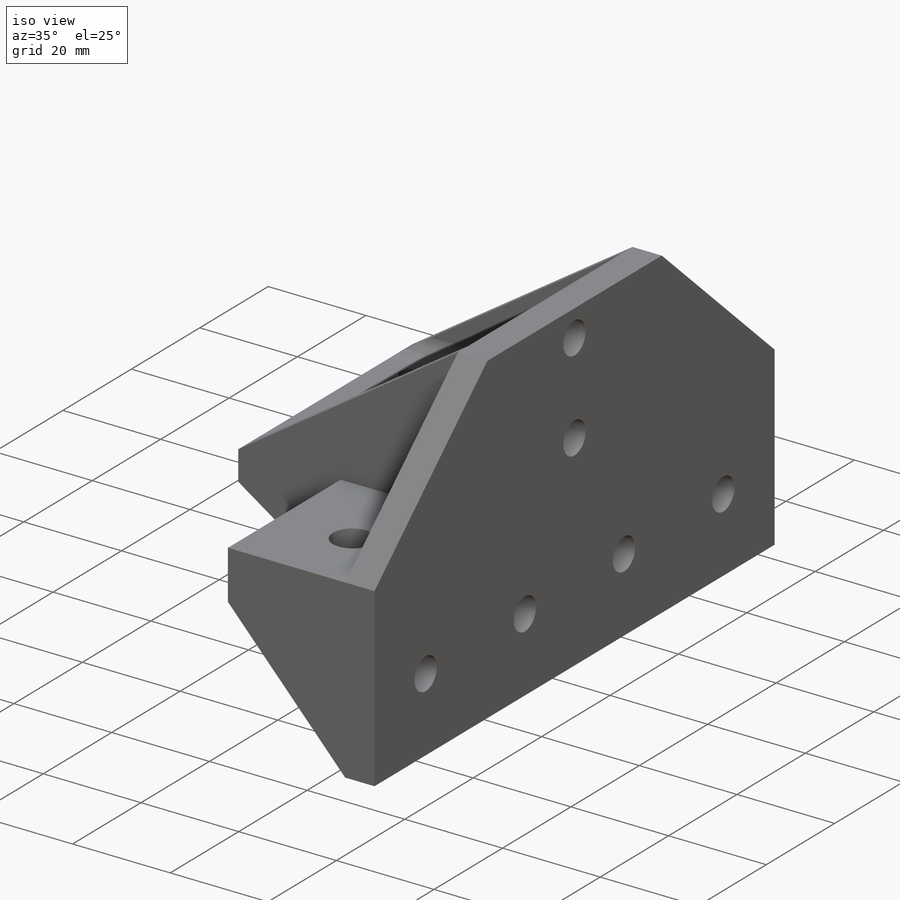
[diagram: iso view]
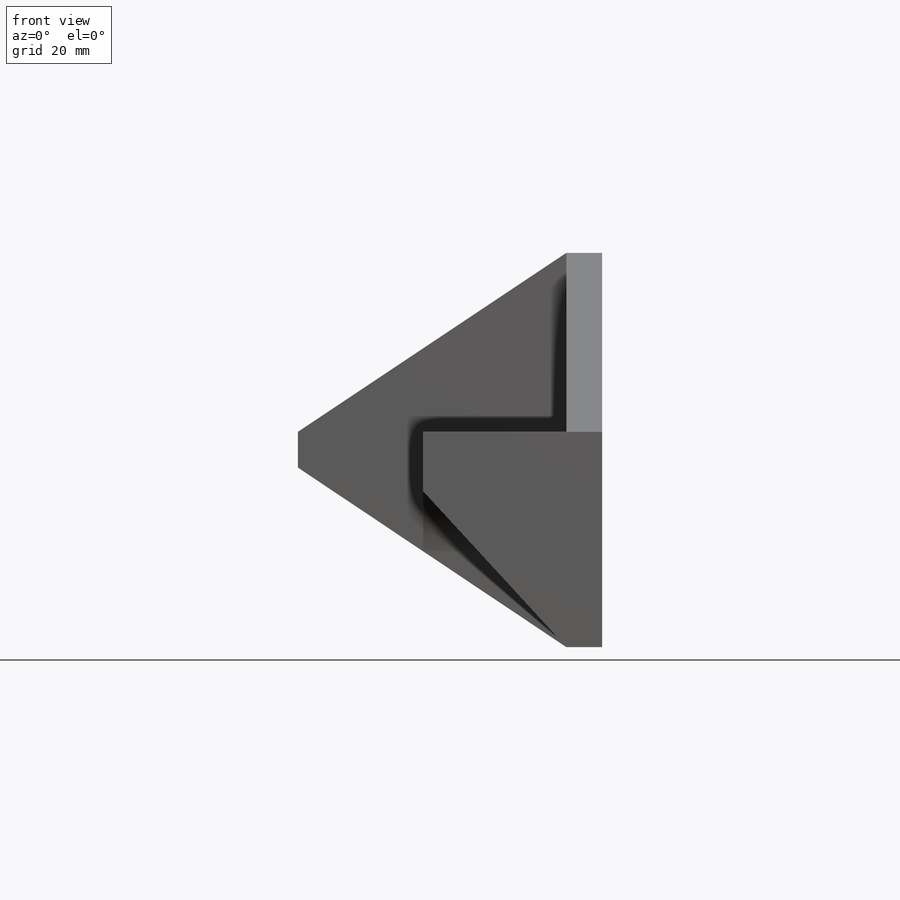
[diagram: front view]
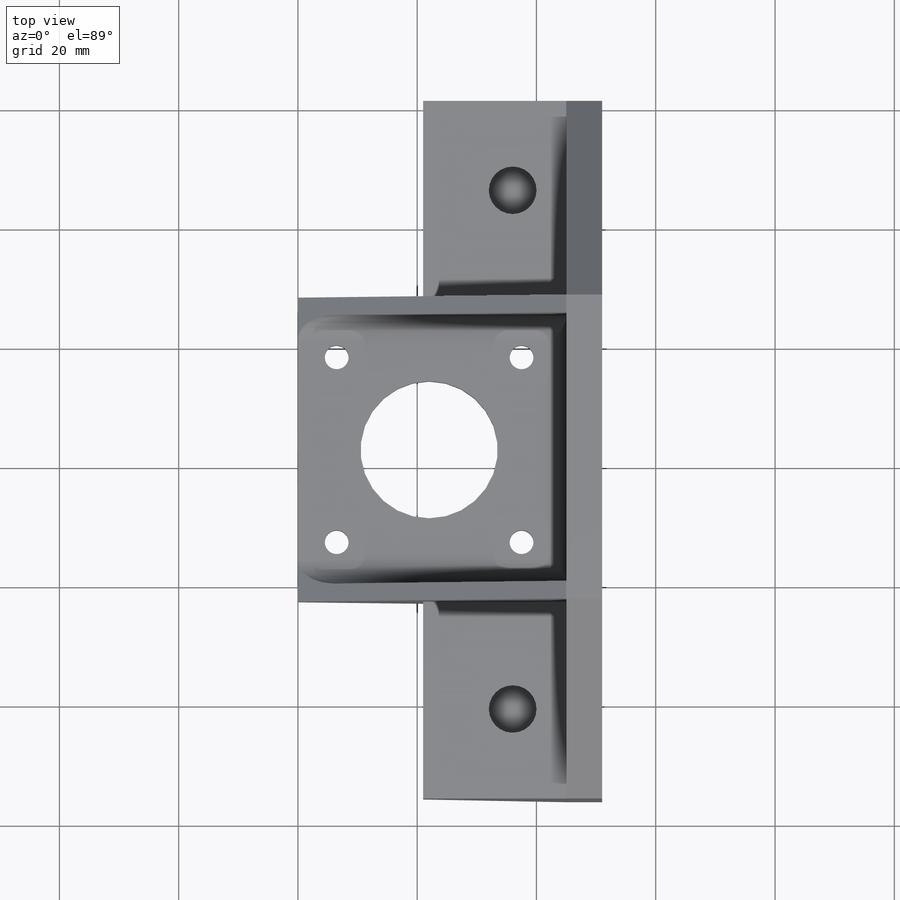
[diagram: top view]
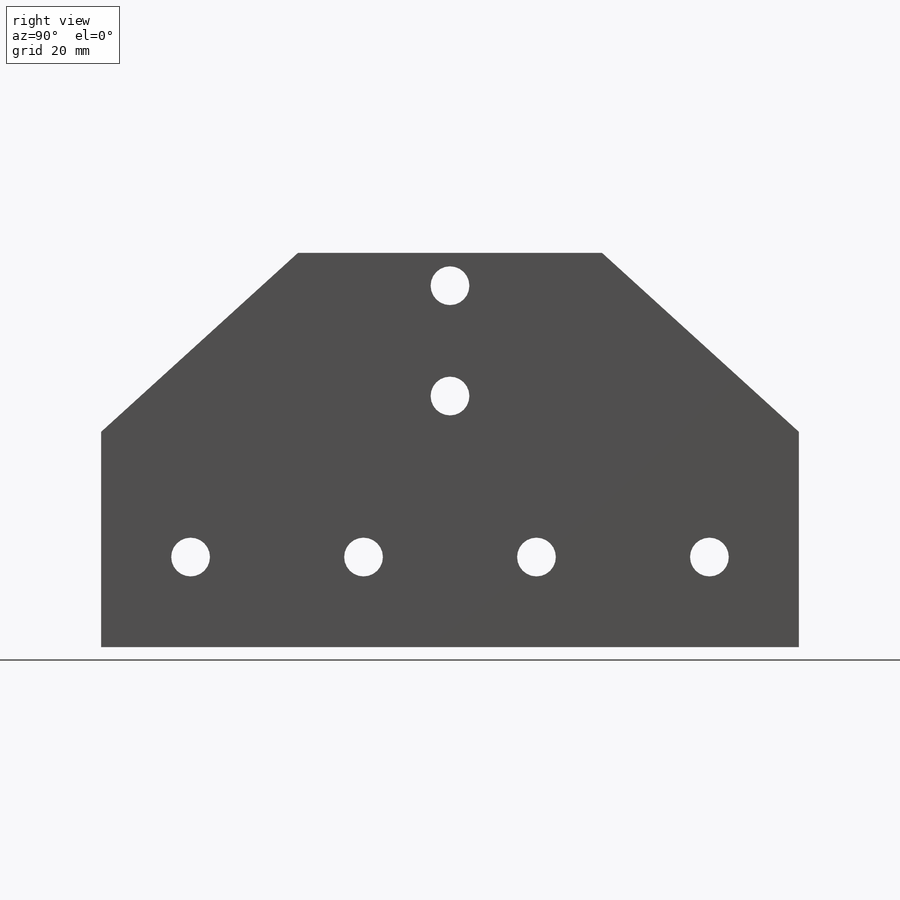
[diagram: right view]
SOLIDWORKS PART (.sldprt)
format: sldprt  version: not decoded by parser v0  size: 504,832 bytes
history: native  units: mm
features: sketch x13, extrude x9, fillet x3, cut_extrude x2, material x1, hole x1 (+11 scaffold rows collapsed)
feature tree (40):
  scaffold x11  (default folders/planes/origin — collapsed)
  material  "ABS PC"
  sketch  "Sketch2"  dims[D1=45.0mm D2=45.0mm]
  extrude  "Boss-Extrude1"  Depth=6mm
  sketch  "Sketch4"  dims[c1.D1=23.0mm c1.D3=7.0mm c1.D4=~6.574258mm c1.D5=~6.574258mm c1.D6=~6.574258mm c1.D7=7.0mm c1.D8=~6.574258mm c1.D9=7.0mm c1.D10=7.0mm c1.D11=7.0mm c2.D6=4.0mm c2.D7=7.0mm c2.D8=7.0mm c2.D2=25.0mm c2.D3=23.0mm c3.D2=50.0mm c3.D3=23.0mm c3.D4=15.5mm c3.D5=15.5mm c3.D6=15.5mm c3.D7=15.5mm c3.D8=15.5mm c3.D9=15.5mm c3.D10=15.5mm c3.D11=15.5mm c4.D7=15.5mm c4.D8=15.5mm c4.D2=21.5mm c4.D3=21.5mm c5.D3=34.5mm c5.D9=21.5mm c6.D3=33.1mm c6.D2=22.0mm c7.D3=22.5mm]
  cut_extrude  "Cut-Extrude1"  [1 undecoded]
  sketch  "Sketch5"  dims[D1=6.0mm]
  extrude  "Boss-Extrude2"  Depth=36mm
  sketch  "Sketch8"
  extrude  "Boss-Extrude3"  Depth=3mm
  sketch  "Sketch9"
  extrude  "Boss-Extrude4"  Depth=3mm
  sketch  "Sketch11"  dims[D1=36.1mm D2=26.1mm D3=30.0mm]
  extrude  "Boss-Extrude5"  Depth=28mm
  sketch  "Sketch12"
  extrude  "Boss-Extrude6"  Depth=5mm
  fillet  "Fillet3"  Radius=10mm
  fillet  "Fillet4"  Radius=4mm
  sketch  "Sketch15"  dims[c1.D1=30.0mm c1.D2=36.1mm c1.D3=26.1mm c1.D4=26.1mm c2.D4=~177.704252deg c3.D4=6.0mm]
  extrude  "Boss-Extrude7"  Depth=28mm
  sketch  "Sketch16"
  extrude  "Boss-Extrude8"  Depth=5mm
  fillet  "Fillet5"  Radius=10mm
  hole  "Ø6.5 (6.5) Diameter Hole1"  Diameter=6.5mm Depth=6.00005mm
  sketch  "Sketch7"  dims[c1.D1=22.5mm c1.D2=5.5mm c1.D3=6.0mm c2.D1=25.5mm c2.D4=8.0mm c2.D5=8.0mm c2.D6=15.1mm c2.D7=10.0mm c2.D3=18.5mm c2.D8=10.0mm]
  sketch  "Sketch6"  dims[hole-wizard template sketch: 59 standard entries collapsed; hole parameters kept: c18.Thru Hole Dia.=6.5mm c18.Thru Hole Depth=~6.00005mm]
  sketch  "Sketch14"  dims[c1.D1=8.0mm c1.D2=8.5mm c1.D3=8.5mm c1.D6=8.5mm c1.D5=8.0mm c2.D3=8.0mm c2.D4=8.0mm c2.D2=23.0mm c2.D5=8.0mm c3.D2=15.0mm c3.D3=7.0mm c3.D4=8.0mm c3.D5=4.0mm c3.D6=4.2mm c3.D7=6.0mm c4.D3=15.0mm c4.D4=15.0mm c4.D5=15.0mm c5.D3=43.5mm c5.D4=43.5mm c5.D2=14.0mm]
  cut_extrude  "Cut-Extrude2"  Depth=7.5mm
  sketch  "Sketch17"
  extrude  "Boss-Extrude9"  Depth=6mm
decode coverage: 22 of 28 modeling features carry decoded parameters
note: ~ marks probable driven/reference dimensions
note: 1 parameter value undecoded
note: suppression state not decoded; provenance and decode notes live in map.json
